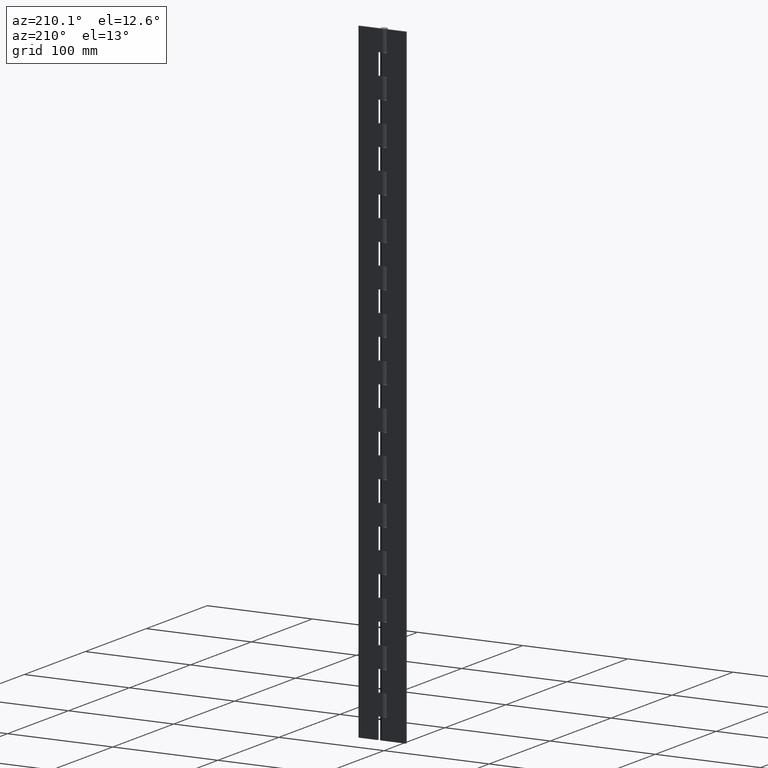
[diagram: clean part render]
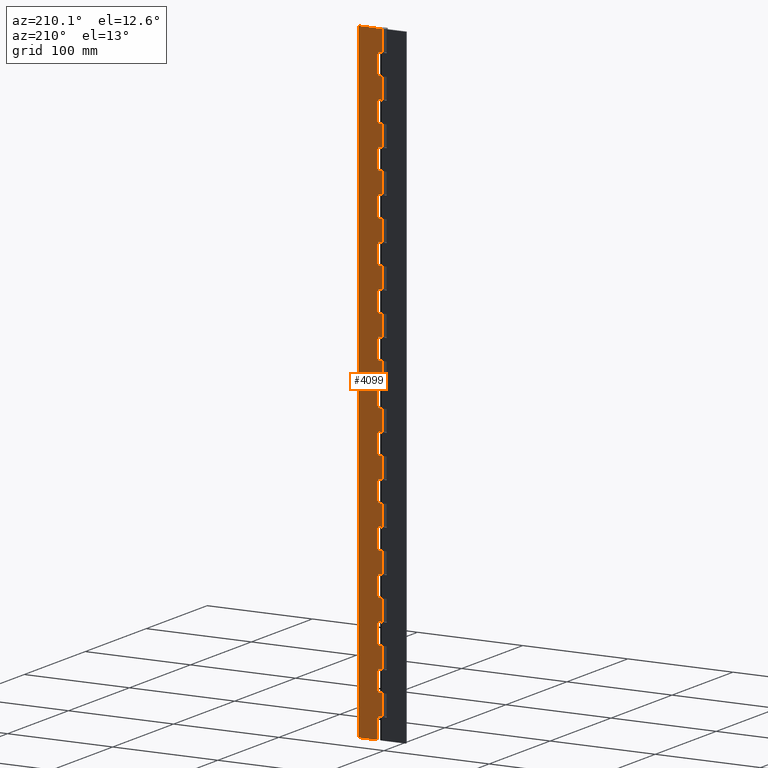
[diagram: same view with one face highlighted and labeled with its STEP entity id]
A machine part, auxiliary view. The second image highlights one B-rep face of the part: STEP entity #4099.
In plain terms, the highlighted face is a freeform B-spline surface patch.
Its self-contained STEP definition (entity closure, byte-faithful):
#86=CARTESIAN_POINT('',(0.0,3.100036000000195,580.0));
#87=VERTEX_POINT('',#86);
#107=CARTESIAN_POINT('',(4.299995999999895,3.100036000000195,580.0));
#108=VERTEX_POINT('',#107);
#109=CARTESIAN_POINT('',(4.299995999999895,3.100036000000195,580.0));
#110=CARTESIAN_POINT('',(0.0,3.100036000000195,580.0));
#111=QUASI_UNIFORM_CURVE('',1,(#109,#110),.UNSPECIFIED.,.F.,.U.);
#112=EDGE_CURVE('',#108,#87,#111,.T.);
#136=CARTESIAN_POINT('',(4.299995999999895,3.100036000000195,560.0));
#137=VERTEX_POINT('',#136);
#143=CARTESIAN_POINT('',(0.0,3.100036000000195,560.0));
#144=VERTEX_POINT('',#143);
#145=CARTESIAN_POINT('',(0.0,3.100036000000195,560.0));
#146=CARTESIAN_POINT('',(4.299995999999895,3.100036000000195,560.0));
#147=QUASI_UNIFORM_CURVE('',1,(#145,#146),.UNSPECIFIED.,.F.,.U.);
#148=EDGE_CURVE('',#144,#137,#147,.T.);
#211=CARTESIAN_POINT('',(4.299995999999895,3.100036000000195,560.0));
#212=CARTESIAN_POINT('',(4.299995999999895,3.100036000000195,580.0));
#213=QUASI_UNIFORM_CURVE('',1,(#211,#212),.UNSPECIFIED.,.F.,.U.);
#214=EDGE_CURVE('',#137,#108,#213,.T.);
#262=CARTESIAN_POINT('',(0.0,3.100036000000195,540.0));
#263=VERTEX_POINT('',#262);
#283=CARTESIAN_POINT('',(4.299995999999895,3.100036000000195,540.0));
#284=VERTEX_POINT('',#283);
#285=CARTESIAN_POINT('',(4.299995999999895,3.100036000000195,540.0));
#286=CARTESIAN_POINT('',(0.0,3.100036000000195,540.0));
#287=QUASI_UNIFORM_CURVE('',1,(#285,#286),.UNSPECIFIED.,.F.,.U.);
#288=EDGE_CURVE('',#284,#263,#287,.T.);
#312=CARTESIAN_POINT('',(4.299995999999895,3.100036000000195,520.0));
#313=VERTEX_POINT('',#312);
#319=CARTESIAN_POINT('',(0.0,3.100036000000195,520.0));
#320=VERTEX_POINT('',#319);
#321=CARTESIAN_POINT('',(0.0,3.100036000000195,520.0));
#322=CARTESIAN_POINT('',(4.299995999999895,3.100036000000195,520.0));
#323=QUASI_UNIFORM_CURVE('',1,(#321,#322),.UNSPECIFIED.,.F.,.U.);
#324=EDGE_CURVE('',#320,#313,#323,.T.);
#387=CARTESIAN_POINT('',(4.299995999999895,3.100036000000195,520.0));
#388=CARTESIAN_POINT('',(4.299995999999895,3.100036000000195,540.0));
#389=QUASI_UNIFORM_CURVE('',1,(#387,#388),.UNSPECIFIED.,.F.,.U.);
#390=EDGE_CURVE('',#313,#284,#389,.T.);
#438=CARTESIAN_POINT('',(0.0,3.100036000000195,500.0));
#439=VERTEX_POINT('',#438);
#459=CARTESIAN_POINT('',(4.299995999999895,3.100036000000195,500.0));
#460=VERTEX_POINT('',#459);
#461=CARTESIAN_POINT('',(4.299995999999895,3.100036000000195,500.0));
#462=CARTESIAN_POINT('',(0.0,3.100036000000195,500.0));
#463=QUASI_UNIFORM_CURVE('',1,(#461,#462),.UNSPECIFIED.,.F.,.U.);
#464=EDGE_CURVE('',#460,#439,#463,.T.);
#488=CARTESIAN_POINT('',(4.299995999999895,3.100036000000195,480.0));
#489=VERTEX_POINT('',#488);
#495=CARTESIAN_POINT('',(0.0,3.100036000000195,480.0));
#496=VERTEX_POINT('',#495);
#497=CARTESIAN_POINT('',(0.0,3.100036000000195,480.0));
#498=CARTESIAN_POINT('',(4.299995999999895,3.100036000000195,480.0));
#499=QUASI_UNIFORM_CURVE('',1,(#497,#498),.UNSPECIFIED.,.F.,.U.);
#500=EDGE_CURVE('',#496,#489,#499,.T.);
#563=CARTESIAN_POINT('',(4.299995999999895,3.100036000000195,480.0));
#564=CARTESIAN_POINT('',(4.299995999999895,3.100036000000195,500.0));
#565=QUASI_UNIFORM_CURVE('',1,(#563,#564),.UNSPECIFIED.,.F.,.U.);
#566=EDGE_CURVE('',#489,#460,#565,.T.);
#614=CARTESIAN_POINT('',(0.0,3.100036000000195,460.0));
#615=VERTEX_POINT('',#614);
#635=CARTESIAN_POINT('',(4.299995999999895,3.100036000000195,460.0));
#636=VERTEX_POINT('',#635);
#637=CARTESIAN_POINT('',(4.299995999999895,3.100036000000195,460.0));
#638=CARTESIAN_POINT('',(0.0,3.100036000000195,460.0));
#639=QUASI_UNIFORM_CURVE('',1,(#637,#638),.UNSPECIFIED.,.F.,.U.);
#640=EDGE_CURVE('',#636,#615,#639,.T.);
#664=CARTESIAN_POINT('',(4.299995999999895,3.100036000000195,440.0));
#665=VERTEX_POINT('',#664);
#671=CARTESIAN_POINT('',(0.0,3.100036000000195,440.0));
#672=VERTEX_POINT('',#671);
#673=CARTESIAN_POINT('',(0.0,3.100036000000195,440.0));
#674=CARTESIAN_POINT('',(4.299995999999895,3.100036000000195,440.0));
#675=QUASI_UNIFORM_CURVE('',1,(#673,#674),.UNSPECIFIED.,.F.,.U.);
#676=EDGE_CURVE('',#672,#665,#675,.T.);
#739=CARTESIAN_POINT('',(4.299995999999895,3.100036000000195,440.0));
#740=CARTESIAN_POINT('',(4.299995999999895,3.100036000000195,460.0));
#741=QUASI_UNIFORM_CURVE('',1,(#739,#740),.UNSPECIFIED.,.F.,.U.);
#742=EDGE_CURVE('',#665,#636,#741,.T.);
#790=CARTESIAN_POINT('',(0.0,3.100036000000195,420.0));
#791=VERTEX_POINT('',#790);
#811=CARTESIAN_POINT('',(4.299995999999895,3.100036000000195,420.0));
#812=VERTEX_POINT('',#811);
#813=CARTESIAN_POINT('',(4.299995999999895,3.100036000000195,420.0));
#814=CARTESIAN_POINT('',(0.0,3.100036000000195,420.0));
#815=QUASI_UNIFORM_CURVE('',1,(#813,#814),.UNSPECIFIED.,.F.,.U.);
#816=EDGE_CURVE('',#812,#791,#815,.T.);
#840=CARTESIAN_POINT('',(4.299995999999895,3.100036000000195,400.0));
#841=VERTEX_POINT('',#840);
#847=CARTESIAN_POINT('',(0.0,3.100036000000195,400.0));
#848=VERTEX_POINT('',#847);
#849=CARTESIAN_POINT('',(0.0,3.100036000000195,400.0));
#850=CARTESIAN_POINT('',(4.299995999999895,3.100036000000195,400.0));
#851=QUASI_UNIFORM_CURVE('',1,(#849,#850),.UNSPECIFIED.,.F.,.U.);
#852=EDGE_CURVE('',#848,#841,#851,.T.);
#915=CARTESIAN_POINT('',(4.299995999999895,3.100036000000195,400.0));
#916=CARTESIAN_POINT('',(4.299995999999895,3.100036000000195,420.0));
#917=QUASI_UNIFORM_CURVE('',1,(#915,#916),.UNSPECIFIED.,.F.,.U.);
#918=EDGE_CURVE('',#841,#812,#917,.T.);
#966=CARTESIAN_POINT('',(0.0,3.100036000000195,380.0));
#967=VERTEX_POINT('',#966);
#987=CARTESIAN_POINT('',(4.299995999999895,3.100036000000195,380.0));
#988=VERTEX_POINT('',#987);
#989=CARTESIAN_POINT('',(4.299995999999895,3.100036000000195,380.0));
#990=CARTESIAN_POINT('',(0.0,3.100036000000195,380.0));
#991=QUASI_UNIFORM_CURVE('',1,(#989,#990),.UNSPECIFIED.,.F.,.U.);
#992=EDGE_CURVE('',#988,#967,#991,.T.);
#1016=CARTESIAN_POINT('',(4.299995999999895,3.100036000000195,360.0));
#1017=VERTEX_POINT('',#1016);
#1023=CARTESIAN_POINT('',(0.0,3.100036000000195,360.0));
#1024=VERTEX_POINT('',#1023);
#1025=CARTESIAN_POINT('',(0.0,3.100036000000195,360.0));
#1026=CARTESIAN_POINT('',(4.299995999999895,3.100036000000195,360.0));
#1027=QUASI_UNIFORM_CURVE('',1,(#1025,#1026),.UNSPECIFIED.,.F.,.U.);
#1028=EDGE_CURVE('',#1024,#1017,#1027,.T.);
#1091=CARTESIAN_POINT('',(4.299995999999895,3.100036000000195,360.0));
#1092=CARTESIAN_POINT('',(4.299995999999895,3.100036000000195,380.0));
#1093=QUASI_UNIFORM_CURVE('',1,(#1091,#1092),.UNSPECIFIED.,.F.,.U.);
#1094=EDGE_CURVE('',#1017,#988,#1093,.T.);
#1142=CARTESIAN_POINT('',(0.0,3.100036000000195,340.0));
#1143=VERTEX_POINT('',#1142);
#1163=CARTESIAN_POINT('',(4.299995999999895,3.100036000000195,340.0));
#1164=VERTEX_POINT('',#1163);
#1165=CARTESIAN_POINT('',(4.299995999999895,3.100036000000195,340.0));
#1166=CARTESIAN_POINT('',(0.0,3.100036000000195,340.0));
#1167=QUASI_UNIFORM_CURVE('',1,(#1165,#1166),.UNSPECIFIED.,.F.,.U.);
#1168=EDGE_CURVE('',#1164,#1143,#1167,.T.);
#1192=CARTESIAN_POINT('',(4.299995999999895,3.100036000000195,320.0));
#1193=VERTEX_POINT('',#1192);
#1199=CARTESIAN_POINT('',(0.0,3.100036000000195,320.0));
#1200=VERTEX_POINT('',#1199);
#1201=CARTESIAN_POINT('',(0.0,3.100036000000195,320.0));
#1202=CARTESIAN_POINT('',(4.299995999999895,3.100036000000195,320.0));
#1203=QUASI_UNIFORM_CURVE('',1,(#1201,#1202),.UNSPECIFIED.,.F.,.U.);
#1204=EDGE_CURVE('',#1200,#1193,#1203,.T.);
#1267=CARTESIAN_POINT('',(4.299995999999895,3.100036000000195,320.0));
#1268=CARTESIAN_POINT('',(4.299995999999895,3.100036000000195,340.0));
#1269=QUASI_UNIFORM_CURVE('',1,(#1267,#1268),.UNSPECIFIED.,.F.,.U.);
#1270=EDGE_CURVE('',#1193,#1164,#1269,.T.);
#1318=CARTESIAN_POINT('',(0.0,3.100036000000195,300.0));
#1319=VERTEX_POINT('',#1318);
#1339=CARTESIAN_POINT('',(4.299995999999895,3.100036000000195,300.0));
#1340=VERTEX_POINT('',#1339);
#1341=CARTESIAN_POINT('',(4.299995999999895,3.100036000000195,300.0));
#1342=CARTESIAN_POINT('',(0.0,3.100036000000195,300.0));
#1343=QUASI_UNIFORM_CURVE('',1,(#1341,#1342),.UNSPECIFIED.,.F.,.U.);
#1344=EDGE_CURVE('',#1340,#1319,#1343,.T.);
#1368=CARTESIAN_POINT('',(4.299995999999895,3.100036000000195,280.0));
#1369=VERTEX_POINT('',#1368);
#1375=CARTESIAN_POINT('',(0.0,3.100036000000195,280.0));
#1376=VERTEX_POINT('',#1375);
#1377=CARTESIAN_POINT('',(0.0,3.100036000000195,280.0));
#1378=CARTESIAN_POINT('',(4.299995999999895,3.100036000000195,280.0));
#1379=QUASI_UNIFORM_CURVE('',1,(#1377,#1378),.UNSPECIFIED.,.F.,.U.);
#1380=EDGE_CURVE('',#1376,#1369,#1379,.T.);
#1443=CARTESIAN_POINT('',(4.299995999999895,3.100036000000195,280.0));
#1444=CARTESIAN_POINT('',(4.299995999999895,3.100036000000195,300.0));
#1445=QUASI_UNIFORM_CURVE('',1,(#1443,#1444),.UNSPECIFIED.,.F.,.U.);
#1446=EDGE_CURVE('',#1369,#1340,#1445,.T.);
#1494=CARTESIAN_POINT('',(0.0,3.100036000000195,260.0));
#1495=VERTEX_POINT('',#1494);
#1515=CARTESIAN_POINT('',(4.299995999999895,3.100036000000195,260.0));
#1516=VERTEX_POINT('',#1515);
#1517=CARTESIAN_POINT('',(4.299995999999895,3.100036000000195,260.0));
#1518=CARTESIAN_POINT('',(0.0,3.100036000000195,260.0));
#1519=QUASI_UNIFORM_CURVE('',1,(#1517,#1518),.UNSPECIFIED.,.F.,.U.);
#1520=EDGE_CURVE('',#1516,#1495,#1519,.T.);
#1544=CARTESIAN_POINT('',(4.299995999999895,3.100036000000195,240.0));
#1545=VERTEX_POINT('',#1544);
#1551=CARTESIAN_POINT('',(0.0,3.100036000000195,240.0));
#1552=VERTEX_POINT('',#1551);
#1553=CARTESIAN_POINT('',(0.0,3.100036000000195,240.0));
#1554=CARTESIAN_POINT('',(4.299995999999895,3.100036000000195,240.0));
#1555=QUASI_UNIFORM_CURVE('',1,(#1553,#1554),.UNSPECIFIED.,.F.,.U.);
#1556=EDGE_CURVE('',#1552,#1545,#1555,.T.);
#1619=CARTESIAN_POINT('',(4.299995999999895,3.100036000000195,240.0));
#1620=CARTESIAN_POINT('',(4.299995999999895,3.100036000000195,260.0));
#1621=QUASI_UNIFORM_CURVE('',1,(#1619,#1620),.UNSPECIFIED.,.F.,.U.);
#1622=EDGE_CURVE('',#1545,#1516,#1621,.T.);
#1670=CARTESIAN_POINT('',(0.0,3.100036000000195,220.0));
#1671=VERTEX_POINT('',#1670);
#1691=CARTESIAN_POINT('',(4.299995999999895,3.100036000000195,220.0));
#1692=VERTEX_POINT('',#1691);
#1693=CARTESIAN_POINT('',(4.299995999999895,3.100036000000195,220.0));
#1694=CARTESIAN_POINT('',(0.0,3.100036000000195,220.0));
#1695=QUASI_UNIFORM_CURVE('',1,(#1693,#1694),.UNSPECIFIED.,.F.,.U.);
#1696=EDGE_CURVE('',#1692,#1671,#1695,.T.);
#1720=CARTESIAN_POINT('',(4.299995999999895,3.100036000000195,200.0));
#1721=VERTEX_POINT('',#1720);
#1727=CARTESIAN_POINT('',(0.0,3.100036000000195,200.0));
#1728=VERTEX_POINT('',#1727);
#1729=CARTESIAN_POINT('',(0.0,3.100036000000195,200.0));
#1730=CARTESIAN_POINT('',(4.299995999999895,3.100036000000195,200.0));
#1731=QUASI_UNIFORM_CURVE('',1,(#1729,#1730),.UNSPECIFIED.,.F.,.U.);
#1732=EDGE_CURVE('',#1728,#1721,#1731,.T.);
#1795=CARTESIAN_POINT('',(4.299995999999895,3.100036000000195,200.0));
#1796=CARTESIAN_POINT('',(4.299995999999895,3.100036000000195,220.0));
#1797=QUASI_UNIFORM_CURVE('',1,(#1795,#1796),.UNSPECIFIED.,.F.,.U.);
#1798=EDGE_CURVE('',#1721,#1692,#1797,.T.);
#1846=CARTESIAN_POINT('',(0.0,3.100036000000195,180.0));
#1847=VERTEX_POINT('',#1846);
#1867=CARTESIAN_POINT('',(4.299995999999895,3.100036000000195,180.0));
#1868=VERTEX_POINT('',#1867);
#1869=CARTESIAN_POINT('',(4.299995999999895,3.100036000000195,180.0));
#1870=CARTESIAN_POINT('',(0.0,3.100036000000195,180.0));
#1871=QUASI_UNIFORM_CURVE('',1,(#1869,#1870),.UNSPECIFIED.,.F.,.U.);
#1872=EDGE_CURVE('',#1868,#1847,#1871,.T.);
#1896=CARTESIAN_POINT('',(4.299995999999895,3.100036000000195,160.0));
#1897=VERTEX_POINT('',#1896);
#1903=CARTESIAN_POINT('',(0.0,3.100036000000195,160.0));
#1904=VERTEX_POINT('',#1903);
#1905=CARTESIAN_POINT('',(0.0,3.100036000000195,160.0));
#1906=CARTESIAN_POINT('',(4.299995999999895,3.100036000000195,160.0));
#1907=QUASI_UNIFORM_CURVE('',1,(#1905,#1906),.UNSPECIFIED.,.F.,.U.);
#1908=EDGE_CURVE('',#1904,#1897,#1907,.T.);
#1971=CARTESIAN_POINT('',(4.299995999999895,3.100036000000195,160.0));
#1972=CARTESIAN_POINT('',(4.299995999999895,3.100036000000195,180.0));
#1973=QUASI_UNIFORM_CURVE('',1,(#1971,#1972),.UNSPECIFIED.,.F.,.U.);
#1974=EDGE_CURVE('',#1897,#1868,#1973,.T.);
#2022=CARTESIAN_POINT('',(0.0,3.100036000000195,140.0));
#2023=VERTEX_POINT('',#2022);
#2043=CARTESIAN_POINT('',(4.299995999999895,3.100036000000195,140.0));
#2044=VERTEX_POINT('',#2043);
#2045=CARTESIAN_POINT('',(4.299995999999895,3.100036000000195,140.0));
#2046=CARTESIAN_POINT('',(0.0,3.100036000000195,140.0));
#2047=QUASI_UNIFORM_CURVE('',1,(#2045,#2046),.UNSPECIFIED.,.F.,.U.);
#2048=EDGE_CURVE('',#2044,#2023,#2047,.T.);
#2072=CARTESIAN_POINT('',(4.299995999999895,3.100036000000195,120.0));
#2073=VERTEX_POINT('',#2072);
#2079=CARTESIAN_POINT('',(0.0,3.100036000000195,120.0));
#2080=VERTEX_POINT('',#2079);
#2081=CARTESIAN_POINT('',(0.0,3.100036000000195,120.0));
#2082=CARTESIAN_POINT('',(4.299995999999895,3.100036000000195,120.0));
#2083=QUASI_UNIFORM_CURVE('',1,(#2081,#2082),.UNSPECIFIED.,.F.,.U.);
#2084=EDGE_CURVE('',#2080,#2073,#2083,.T.);
#2147=CARTESIAN_POINT('',(4.299995999999895,3.100036000000195,120.0));
#2148=CARTESIAN_POINT('',(4.299995999999895,3.100036000000195,140.0));
#2149=QUASI_UNIFORM_CURVE('',1,(#2147,#2148),.UNSPECIFIED.,.F.,.U.);
#2150=EDGE_CURVE('',#2073,#2044,#2149,.T.);
#2198=CARTESIAN_POINT('',(0.0,3.100036000000195,100.0));
#2199=VERTEX_POINT('',#2198);
#2219=CARTESIAN_POINT('',(4.299995999999895,3.100036000000195,100.0));
#2220=VERTEX_POINT('',#2219);
#2221=CARTESIAN_POINT('',(4.299995999999895,3.100036000000195,100.0));
#2222=CARTESIAN_POINT('',(0.0,3.100036000000195,100.0));
#2223=QUASI_UNIFORM_CURVE('',1,(#2221,#2222),.UNSPECIFIED.,.F.,.U.);
#2224=EDGE_CURVE('',#2220,#2199,#2223,.T.);
#2248=CARTESIAN_POINT('',(4.299995999999895,3.100036000000195,80.0));
#2249=VERTEX_POINT('',#2248);
#2255=CARTESIAN_POINT('',(0.0,3.100036000000195,80.0));
#2256=VERTEX_POINT('',#2255);
#2257=CARTESIAN_POINT('',(0.0,3.100036000000195,80.0));
#2258=CARTESIAN_POINT('',(4.299995999999895,3.100036000000195,80.0));
#2259=QUASI_UNIFORM_CURVE('',1,(#2257,#2258),.UNSPECIFIED.,.F.,.U.);
#2260=EDGE_CURVE('',#2256,#2249,#2259,.T.);
#2323=CARTESIAN_POINT('',(4.299995999999895,3.100036000000195,80.0));
#2324=CARTESIAN_POINT('',(4.299995999999895,3.100036000000195,100.0));
#2325=QUASI_UNIFORM_CURVE('',1,(#2323,#2324),.UNSPECIFIED.,.F.,.U.);
#2326=EDGE_CURVE('',#2249,#2220,#2325,.T.);
#2374=CARTESIAN_POINT('',(0.0,3.100036000000195,60.0));
#2375=VERTEX_POINT('',#2374);
#2395=CARTESIAN_POINT('',(4.299995999999895,3.100036000000195,60.0));
#2396=VERTEX_POINT('',#2395);
#2397=CARTESIAN_POINT('',(4.299995999999895,3.100036000000195,60.0));
#2398=CARTESIAN_POINT('',(0.0,3.100036000000195,60.0));
#2399=QUASI_UNIFORM_CURVE('',1,(#2397,#2398),.UNSPECIFIED.,.F.,.U.);
#2400=EDGE_CURVE('',#2396,#2375,#2399,.T.);
#2424=CARTESIAN_POINT('',(4.299995999999895,3.100036000000195,40.0));
#2425=VERTEX_POINT('',#2424);
#2431=CARTESIAN_POINT('',(0.0,3.100036000000195,40.0));
#2432=VERTEX_POINT('',#2431);
#2433=CARTESIAN_POINT('',(0.0,3.100036000000195,40.0));
#2434=CARTESIAN_POINT('',(4.299995999999895,3.100036000000195,40.0));
#2435=QUASI_UNIFORM_CURVE('',1,(#2433,#2434),.UNSPECIFIED.,.F.,.U.);
#2436=EDGE_CURVE('',#2432,#2425,#2435,.T.);
#2499=CARTESIAN_POINT('',(4.299995999999895,3.100036000000195,40.0));
#2500=CARTESIAN_POINT('',(4.299995999999895,3.100036000000195,60.0));
#2501=QUASI_UNIFORM_CURVE('',1,(#2499,#2500),.UNSPECIFIED.,.F.,.U.);
#2502=EDGE_CURVE('',#2425,#2396,#2501,.T.);
#2522=CARTESIAN_POINT('',(4.299995999999895,3.100036000000195,20.0));
#2523=VERTEX_POINT('',#2522);
#2529=CARTESIAN_POINT('',(4.299995999999895,3.100036000000160,0.0));
#2530=VERTEX_POINT('',#2529);
#2531=CARTESIAN_POINT('',(4.299995999999895,3.100036000000160,0.0));
#2532=CARTESIAN_POINT('',(4.299995999999895,3.100036000000195,20.0));
#2533=QUASI_UNIFORM_CURVE('',1,(#2531,#2532),.UNSPECIFIED.,.F.,.U.);
#2534=EDGE_CURVE('',#2530,#2523,#2533,.T.);
#2584=CARTESIAN_POINT('',(0.0,3.100036000000195,20.0));
#2585=VERTEX_POINT('',#2584);
#2605=CARTESIAN_POINT('',(4.299995999999895,3.100036000000195,20.0));
#2606=CARTESIAN_POINT('',(0.0,3.100036000000195,20.0));
#2607=QUASI_UNIFORM_CURVE('',1,(#2605,#2606),.UNSPECIFIED.,.F.,.U.);
#2608=EDGE_CURVE('',#2523,#2585,#2607,.T.);
#2628=CARTESIAN_POINT('',(22.500000000000000,3.100036000000160,599.999978000000060));
#2629=VERTEX_POINT('',#2628);
#2635=CARTESIAN_POINT('',(0.0,3.100036000000160,599.999978000000060));
#2636=VERTEX_POINT('',#2635);
#2637=CARTESIAN_POINT('',(22.500000000000000,3.100036000000160,599.999978000000060));
#2638=CARTESIAN_POINT('',(0.0,3.100036000000160,599.999978000000060));
#2639=QUASI_UNIFORM_CURVE('',1,(#2637,#2638),.UNSPECIFIED.,.F.,.U.);
#2640=EDGE_CURVE('',#2629,#2636,#2639,.T.);
#2699=CARTESIAN_POINT('',(22.500000000000000,3.100036000000160,0.0));
#2700=VERTEX_POINT('',#2699);
#2706=CARTESIAN_POINT('',(22.500000000000000,3.100036000000160,599.999978000000060));
#2707=CARTESIAN_POINT('',(22.500000000000000,3.100036000000160,0.0));
#2708=QUASI_UNIFORM_CURVE('',1,(#2706,#2707),.UNSPECIFIED.,.F.,.U.);
#2709=EDGE_CURVE('',#2629,#2700,#2708,.T.);
#2726=CARTESIAN_POINT('',(22.500000000000000,3.100036000000160,0.0));
#2727=CARTESIAN_POINT('',(4.299995999999895,3.100036000000160,0.0));
#2728=QUASI_UNIFORM_CURVE('',1,(#2726,#2727),.UNSPECIFIED.,.F.,.U.);
#2729=EDGE_CURVE('',#2700,#2530,#2728,.T.);
#2816=CARTESIAN_POINT('',(0.0,3.100036000000195,40.0));
#2817=CARTESIAN_POINT('',(0.0,3.100036000000195,20.0));
#2818=QUASI_UNIFORM_CURVE('',1,(#2816,#2817),.UNSPECIFIED.,.F.,.U.);
#2819=EDGE_CURVE('',#2432,#2585,#2818,.T.);
#2902=CARTESIAN_POINT('',(0.0,3.100036000000195,80.0));
#2903=CARTESIAN_POINT('',(0.0,3.100036000000195,60.0));
#2904=QUASI_UNIFORM_CURVE('',1,(#2902,#2903),.UNSPECIFIED.,.F.,.U.);
#2905=EDGE_CURVE('',#2256,#2375,#2904,.T.);
#2988=CARTESIAN_POINT('',(0.0,3.100036000000195,120.0));
#2989=CARTESIAN_POINT('',(0.0,3.100036000000195,100.0));
#2990=QUASI_UNIFORM_CURVE('',1,(#2988,#2989),.UNSPECIFIED.,.F.,.U.);
#2991=EDGE_CURVE('',#2080,#2199,#2990,.T.);
#3074=CARTESIAN_POINT('',(0.0,3.100036000000195,160.0));
#3075=CARTESIAN_POINT('',(0.0,3.100036000000195,140.0));
#3076=QUASI_UNIFORM_CURVE('',1,(#3074,#3075),.UNSPECIFIED.,.F.,.U.);
#3077=EDGE_CURVE('',#1904,#2023,#3076,.T.);
#3160=CARTESIAN_POINT('',(0.0,3.100036000000195,200.0));
#3161=CARTESIAN_POINT('',(0.0,3.100036000000195,180.0));
#3162=QUASI_UNIFORM_CURVE('',1,(#3160,#3161),.UNSPECIFIED.,.F.,.U.);
#3163=EDGE_CURVE('',#1728,#1847,#3162,.T.);
#3246=CARTESIAN_POINT('',(0.0,3.100036000000195,240.0));
#3247=CARTESIAN_POINT('',(0.0,3.100036000000195,220.0));
#3248=QUASI_UNIFORM_CURVE('',1,(#3246,#3247),.UNSPECIFIED.,.F.,.U.);
#3249=EDGE_CURVE('',#1552,#1671,#3248,.T.);
#3332=CARTESIAN_POINT('',(0.0,3.100036000000195,280.0));
#3333=CARTESIAN_POINT('',(0.0,3.100036000000195,260.0));
#3334=QUASI_UNIFORM_CURVE('',1,(#3332,#3333),.UNSPECIFIED.,.F.,.U.);
#3335=EDGE_CURVE('',#1376,#1495,#3334,.T.);
#3418=CARTESIAN_POINT('',(0.0,3.100036000000195,320.0));
#3419=CARTESIAN_POINT('',(0.0,3.100036000000195,300.0));
#3420=QUASI_UNIFORM_CURVE('',1,(#3418,#3419),.UNSPECIFIED.,.F.,.U.);
#3421=EDGE_CURVE('',#1200,#1319,#3420,.T.);
#3504=CARTESIAN_POINT('',(0.0,3.100036000000195,360.0));
#3505=CARTESIAN_POINT('',(0.0,3.100036000000195,340.0));
#3506=QUASI_UNIFORM_CURVE('',1,(#3504,#3505),.UNSPECIFIED.,.F.,.U.);
#3507=EDGE_CURVE('',#1024,#1143,#3506,.T.);
#3590=CARTESIAN_POINT('',(0.0,3.100036000000195,400.0));
#3591=CARTESIAN_POINT('',(0.0,3.100036000000195,380.0));
#3592=QUASI_UNIFORM_CURVE('',1,(#3590,#3591),.UNSPECIFIED.,.F.,.U.);
#3593=EDGE_CURVE('',#848,#967,#3592,.T.);
#3676=CARTESIAN_POINT('',(0.0,3.100036000000195,440.0));
#3677=CARTESIAN_POINT('',(0.0,3.100036000000195,420.0));
#3678=QUASI_UNIFORM_CURVE('',1,(#3676,#3677),.UNSPECIFIED.,.F.,.U.);
#3679=EDGE_CURVE('',#672,#791,#3678,.T.);
#3762=CARTESIAN_POINT('',(0.0,3.100036000000195,480.0));
#3763=CARTESIAN_POINT('',(0.0,3.100036000000195,460.0));
#3764=QUASI_UNIFORM_CURVE('',1,(#3762,#3763),.UNSPECIFIED.,.F.,.U.);
#3765=EDGE_CURVE('',#496,#615,#3764,.T.);
#3848=CARTESIAN_POINT('',(0.0,3.100036000000195,520.0));
#3849=CARTESIAN_POINT('',(0.0,3.100036000000195,500.0));
#3850=QUASI_UNIFORM_CURVE('',1,(#3848,#3849),.UNSPECIFIED.,.F.,.U.);
#3851=EDGE_CURVE('',#320,#439,#3850,.T.);
#3989=CARTESIAN_POINT('',(0.0,3.100036000000160,599.999978000000060));
#3990=CARTESIAN_POINT('',(0.0,3.100036000000195,580.0));
#3991=QUASI_UNIFORM_CURVE('',1,(#3989,#3990),.UNSPECIFIED.,.F.,.U.);
#3992=EDGE_CURVE('',#2636,#87,#3991,.T.);
#4020=CARTESIAN_POINT('',(0.0,3.100036000000195,560.0));
#4021=CARTESIAN_POINT('',(0.0,3.100036000000195,540.0));
#4022=QUASI_UNIFORM_CURVE('',1,(#4020,#4021),.UNSPECIFIED.,.F.,.U.);
#4023=EDGE_CURVE('',#144,#263,#4022,.T.);
#4030=CARTESIAN_POINT('',(-1.123874956390631,3.100036000000160,629.969998267665800));
#4031=CARTESIAN_POINT('',(-1.123874956390631,3.100036000000160,-29.970014903247840));
#4032=CARTESIAN_POINT('',(23.623875559887662,3.100036000000160,629.969998267665800));
#4033=CARTESIAN_POINT('',(23.623875559887662,3.100036000000160,-29.970014903247840));
#4034=B_SPLINE_SURFACE_WITH_KNOTS('',1,1,((#4030,#4032),(#4031,#4033)),.UNSPECIFIED.,.F.,.F.,.U.,(2,2),(2,2),(0.0,659.940013170913630),(0.0,24.747750516278298),.UNSPECIFIED.);
#4035=ORIENTED_EDGE('',*,*,#148,.T.);
#4036=ORIENTED_EDGE('',*,*,#214,.T.);
#4037=ORIENTED_EDGE('',*,*,#112,.T.);
#4038=ORIENTED_EDGE('',*,*,#3992,.F.);
#4039=ORIENTED_EDGE('',*,*,#2640,.F.);
#4040=ORIENTED_EDGE('',*,*,#2709,.T.);
#4041=ORIENTED_EDGE('',*,*,#2729,.T.);
#4042=ORIENTED_EDGE('',*,*,#2534,.T.);
#4043=ORIENTED_EDGE('',*,*,#2608,.T.);
#4044=ORIENTED_EDGE('',*,*,#2819,.F.);
#4045=ORIENTED_EDGE('',*,*,#2436,.T.);
#4046=ORIENTED_EDGE('',*,*,#2502,.T.);
#4047=ORIENTED_EDGE('',*,*,#2400,.T.);
#4048=ORIENTED_EDGE('',*,*,#2905,.F.);
#4049=ORIENTED_EDGE('',*,*,#2260,.T.);
#4050=ORIENTED_EDGE('',*,*,#2326,.T.);
#4051=ORIENTED_EDGE('',*,*,#2224,.T.);
#4052=ORIENTED_EDGE('',*,*,#2991,.F.);
#4053=ORIENTED_EDGE('',*,*,#2084,.T.);
#4054=ORIENTED_EDGE('',*,*,#2150,.T.);
#4055=ORIENTED_EDGE('',*,*,#2048,.T.);
#4056=ORIENTED_EDGE('',*,*,#3077,.F.);
#4057=ORIENTED_EDGE('',*,*,#1908,.T.);
#4058=ORIENTED_EDGE('',*,*,#1974,.T.);
#4059=ORIENTED_EDGE('',*,*,#1872,.T.);
#4060=ORIENTED_EDGE('',*,*,#3163,.F.);
#4061=ORIENTED_EDGE('',*,*,#1732,.T.);
#4062=ORIENTED_EDGE('',*,*,#1798,.T.);
#4063=ORIENTED_EDGE('',*,*,#1696,.T.);
#4064=ORIENTED_EDGE('',*,*,#3249,.F.);
#4065=ORIENTED_EDGE('',*,*,#1556,.T.);
#4066=ORIENTED_EDGE('',*,*,#1622,.T.);
#4067=ORIENTED_EDGE('',*,*,#1520,.T.);
#4068=ORIENTED_EDGE('',*,*,#3335,.F.);
#4069=ORIENTED_EDGE('',*,*,#1380,.T.);
#4070=ORIENTED_EDGE('',*,*,#1446,.T.);
#4071=ORIENTED_EDGE('',*,*,#1344,.T.);
#4072=ORIENTED_EDGE('',*,*,#3421,.F.);
#4073=ORIENTED_EDGE('',*,*,#1204,.T.);
#4074=ORIENTED_EDGE('',*,*,#1270,.T.);
#4075=ORIENTED_EDGE('',*,*,#1168,.T.);
#4076=ORIENTED_EDGE('',*,*,#3507,.F.);
#4077=ORIENTED_EDGE('',*,*,#1028,.T.);
#4078=ORIENTED_EDGE('',*,*,#1094,.T.);
#4079=ORIENTED_EDGE('',*,*,#992,.T.);
#4080=ORIENTED_EDGE('',*,*,#3593,.F.);
#4081=ORIENTED_EDGE('',*,*,#852,.T.);
#4082=ORIENTED_EDGE('',*,*,#918,.T.);
#4083=ORIENTED_EDGE('',*,*,#816,.T.);
#4084=ORIENTED_EDGE('',*,*,#3679,.F.);
#4085=ORIENTED_EDGE('',*,*,#676,.T.);
#4086=ORIENTED_EDGE('',*,*,#742,.T.);
#4087=ORIENTED_EDGE('',*,*,#640,.T.);
#4088=ORIENTED_EDGE('',*,*,#3765,.F.);
#4089=ORIENTED_EDGE('',*,*,#500,.T.);
#4090=ORIENTED_EDGE('',*,*,#566,.T.);
#4091=ORIENTED_EDGE('',*,*,#464,.T.);
#4092=ORIENTED_EDGE('',*,*,#3851,.F.);
#4093=ORIENTED_EDGE('',*,*,#324,.T.);
#4094=ORIENTED_EDGE('',*,*,#390,.T.);
#4095=ORIENTED_EDGE('',*,*,#288,.T.);
#4096=ORIENTED_EDGE('',*,*,#4023,.F.);
#4097=EDGE_LOOP('',(#4035,#4036,#4037,#4038,#4039,#4040,#4041,#4042,#4043,#4044,#4045,#4046,#4047,#4048,#4049,#4050,#4051,#4052,#4053,#4054,#4055,#4056,#4057,#4058,#4059,#4060,#4061,#4062,#4063,#4064,#4065,#4066,#4067,#4068,#4069,#4070,#4071,#4072,#4073,#4074,#4075,#4076,#4077,#4078,#4079,#4080,#4081,#4082,#4083,#4084,#4085,#4086,#4087,#4088,#4089,#4090,#4091,#4092,#4093,#4094,#4095,#4096));
#4098=FACE_OUTER_BOUND('',#4097,.T.);
#4099=ADVANCED_FACE('',(#4098),#4034,.F.);